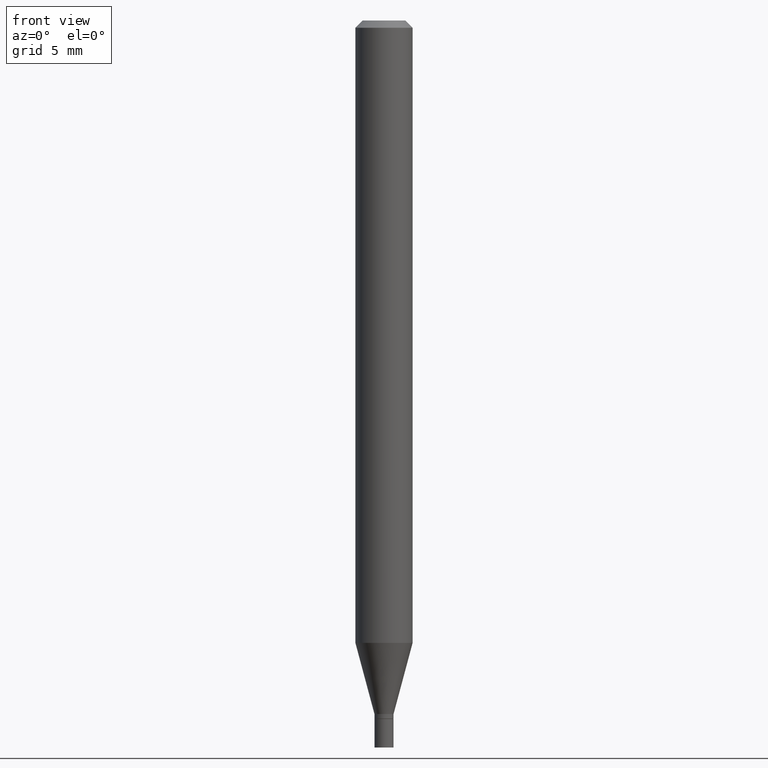
[diagram: clean part render]
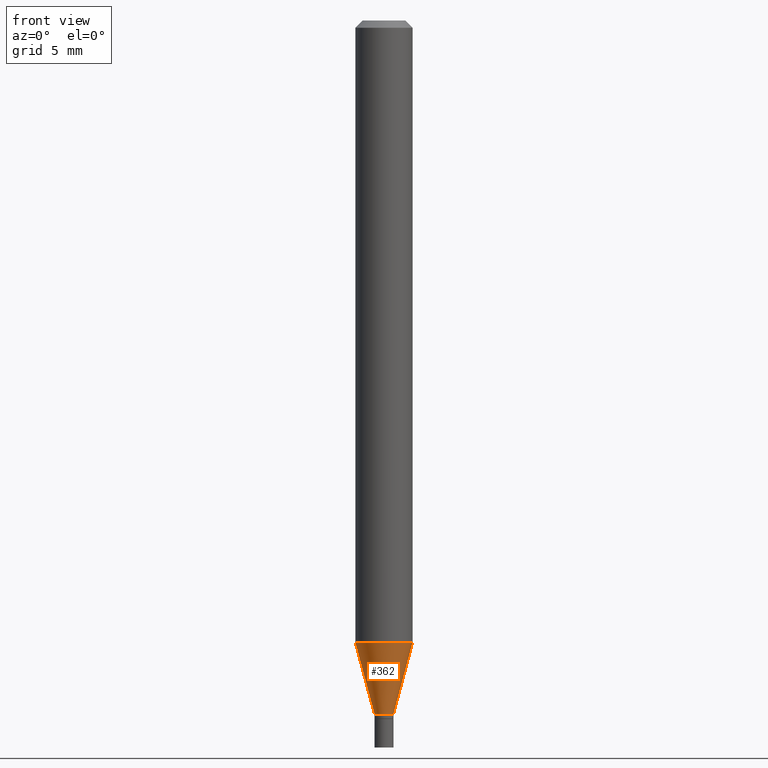
[diagram: same view with one face highlighted and labeled with its STEP entity id]
A machine part, front view. The second image highlights one B-rep face of the part: STEP entity #362.
In plain terms, the highlighted conical surface has half-angle 15 deg.
Its self-contained STEP definition (entity closure, byte-faithful):
#7 = VERTEX_POINT ( 'NONE', #9 ) ;
#9 = CARTESIAN_POINT ( 'NONE',  ( -0.01969999999999965182, -4.459811605909121856E-15, -1.430900000000000061 ) ) ;
#20 = LINE ( 'NONE', #86, #171 ) ;
#22 = DIRECTION ( 'NONE',  ( -2.445468806185136597E-29, 3.491481338843145583E-15, 1.000000000000000000 ) ) ;
#24 = EDGE_CURVE ( 'NONE', #216, #431, #444, .T. ) ;
#36 = ORIENTED_EDGE ( 'NONE', *, *, #212, .T. ) ;
#62 = CARTESIAN_POINT ( 'NONE',  ( -0.05904999999999999832, -4.063639483012322948E-15, -1.284043800722163953 ) ) ;
#63 = CARTESIAN_POINT ( 'NONE',  ( 0.05904999999999999832, -4.895558914596035784E-15, -1.284043800722163953 ) ) ;
#75 = VERTEX_POINT ( 'NONE', #339 ) ;
#86 = CARTESIAN_POINT ( 'NONE',  ( 0.01969999999999965182, -5.133525012501073765E-15, -1.430900000000000061 ) ) ;
#91 = DIRECTION ( 'NONE',  ( 0.2588190451025216832, 1.565188264969619798E-15, 0.9659258262890679791 ) ) ;
#104 = CARTESIAN_POINT ( 'NONE',  ( 3.499221314770312017E-29, -4.995960647750656917E-15, -1.430900000000000061 ) ) ;
#106 = ORIENTED_EDGE ( 'NONE', *, *, #365, .F. ) ;
#139 = AXIS2_PLACEMENT_3D ( 'NONE', #162, #22, #311 ) ;
#162 = CARTESIAN_POINT ( 'NONE',  ( 3.499221314770312017E-29, -4.995960647750656917E-15, -1.430900000000000061 ) ) ;
#171 = VECTOR ( 'NONE', #91, 39.37007874015748143 ) ;
#174 = DIRECTION ( 'NONE',  ( -2.445468806185136597E-29, 3.491481338843145583E-15, 1.000000000000000000 ) ) ;
#179 = EDGE_LOOP ( 'NONE', ( #106, #214, #36, #284 ) ) ;
#181 = VECTOR ( 'NONE', #280, 39.37007874015748143 ) ;
#209 = AXIS2_PLACEMENT_3D ( 'NONE', #104, #174, #210 ) ;
#210 = DIRECTION ( 'NONE',  ( 1.000000000000000000, -6.982962677686254089E-15, 0.000000000000000000 ) ) ;
#212 = EDGE_CURVE ( 'NONE', #75, #431, #20, .T. ) ;
#214 = ORIENTED_EDGE ( 'NONE', *, *, #347, .T. ) ;
#216 = VERTEX_POINT ( 'NONE', #62 ) ;
#239 = CARTESIAN_POINT ( 'NONE',  ( -0.01969999999999965182, -4.855983728805919186E-15, -1.430900000000000061 ) ) ;
#247 = AXIS2_PLACEMENT_3D ( 'NONE', #364, #446, #373 ) ;
#280 = DIRECTION ( 'NONE',  ( -0.2588190451025216832, 5.211531920934551831E-15, 0.9659258262890679791 ) ) ;
#283 = LINE ( 'NONE', #239, #181 ) ;
#284 = ORIENTED_EDGE ( 'NONE', *, *, #24, .F. ) ;
#285 = CONICAL_SURFACE ( 'NONE', #209, 0.01969999999999965182, 0.2617993877991502960 ) ;
#311 = DIRECTION ( 'NONE',  ( 1.000000000000000000, -6.982962677686254089E-15, 0.000000000000000000 ) ) ;
#339 = CARTESIAN_POINT ( 'NONE',  ( 0.01969999999999965182, -5.133525012501073765E-15, -1.430900000000000061 ) ) ;
#347 = EDGE_CURVE ( 'NONE', #7, #75, #415, .T. ) ;
#362 = ADVANCED_FACE ( 'NONE', ( #396 ), #285, .T. ) ;
#364 = CARTESIAN_POINT ( 'NONE',  ( 3.140089060441456086E-29, -4.483214968478662441E-15, -1.284043800722163953 ) ) ;
#365 = EDGE_CURVE ( 'NONE', #7, #216, #283, .T. ) ;
#373 = DIRECTION ( 'NONE',  ( 1.000000000000000000, -6.982962677686273021E-15, 0.000000000000000000 ) ) ;
#396 = FACE_OUTER_BOUND ( 'NONE', #179, .T. ) ;
#415 = CIRCLE ( 'NONE', #139, 0.01969999999999965182 ) ;
#431 = VERTEX_POINT ( 'NONE', #63 ) ;
#444 = CIRCLE ( 'NONE', #247, 0.05904999999999999832 ) ;
#446 = DIRECTION ( 'NONE',  ( -2.445468806185136597E-29, 3.491481338843145583E-15, 1.000000000000000000 ) ) ;